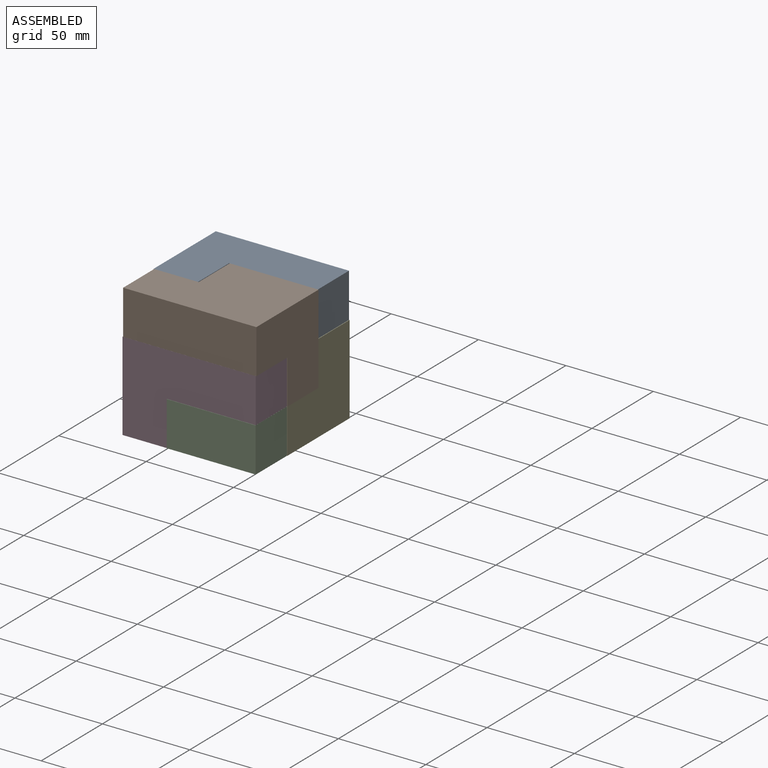
[diagram: assembled view]
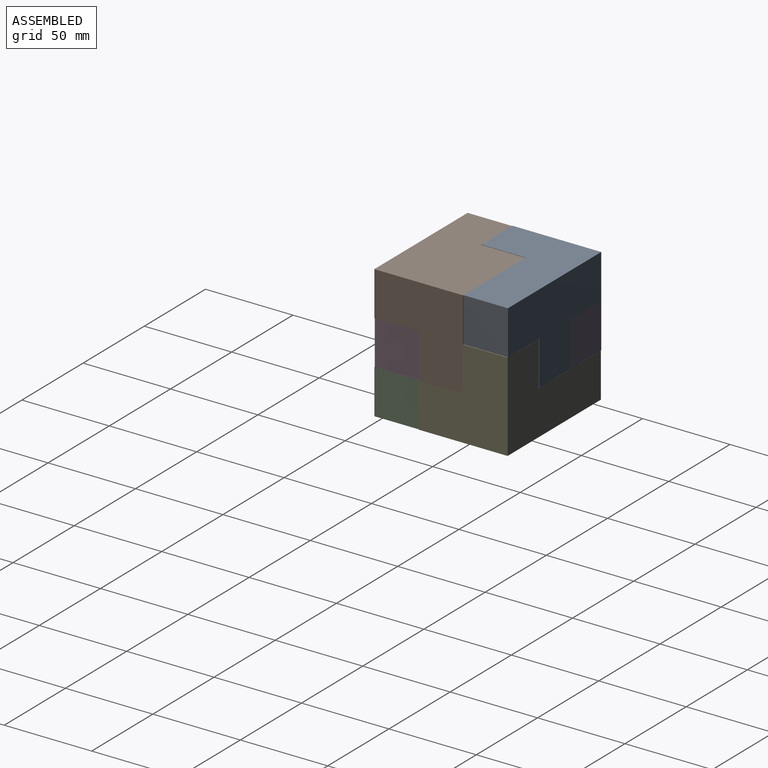
[diagram: assembled view, second angle]
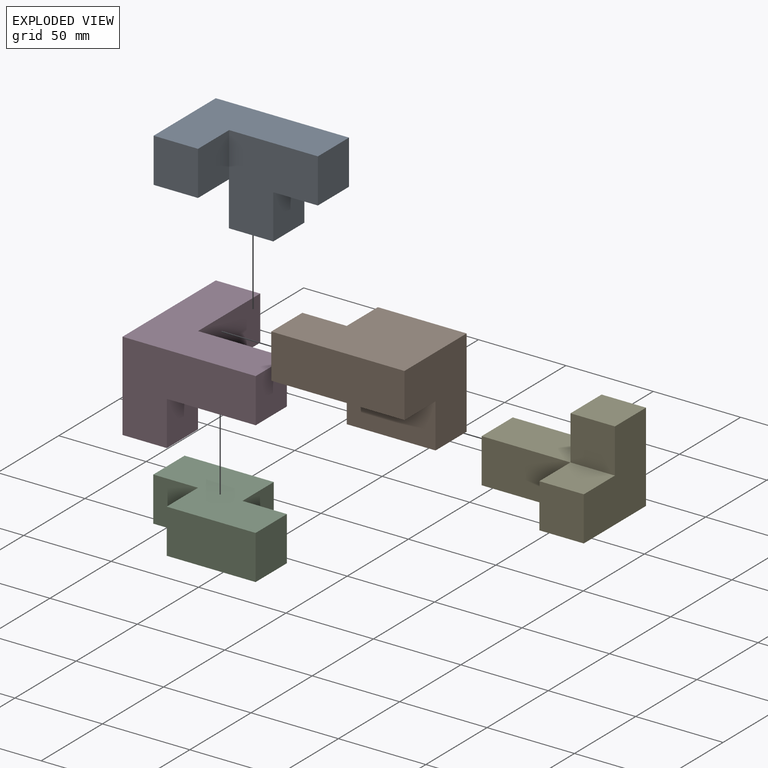
[diagram: exploded view]
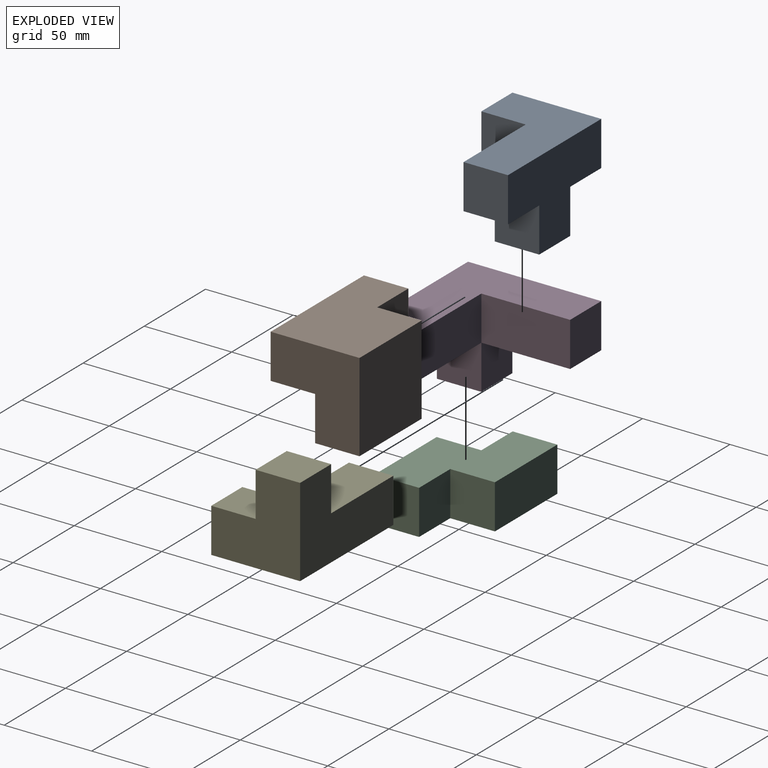
[diagram: exploded view, second angle]
ASSEMBLY  parts=5 mates=3
PART A: 12 faces, bbox 76.2x50.8x50.8 mm
  f0: plane 50.8x25.4mm, normal (0,0,-1), area 1286.9mm2, adj f2,f3,f5,f6,f7,f9
  f1: plane 25.53x25.4mm, normal (0,0,-1), area 648.6mm2, adj f3,f4,f5,f10
  f2: plane 25.4x25.4mm, normal (1,0,0), area 645.2mm2, adj f0,f3,f7,f8
  f3: plane 50.93x50.8mm, normal (0,-1,0), area 1935.5mm2, adj f0,f1,f2,f4,f8,f9,f10,f11
  f4: plane 25.4x25.4mm, normal (1,0,0), area 645.2mm2, adj f1,f3,f5,f8
  f5: plane 76.2x50.8mm, normal (0,1,0), area 2580.6mm2, adj f0,f1,f4,f6,f8,f9,f10,f11
  f6: plane 50.8x25.4mm, normal (-1,0,0), area 1290.3mm2, adj f0,f5,f7,f8
  f7: plane 25.4x25.4mm, normal (0,-1,0), area 645.2mm2, adj f0,f2,f6,f8
  f8: plane 76.2x50.8mm, normal (0,0,1), area 2580.6mm2, adj f2,f3,f4,f5,f6,f7
  f9: plane 25.4x25.4mm, normal (-1,0,0), area 645.2mm2, adj f0,f3,f5,f11
  f10: plane 25.4x25.4mm, normal (1,0,0), area 645.2mm2, adj f1,f3,f5,f11
  f11: plane 25.4x25.4mm, normal (0,0,-1), area 645.2mm2, adj f3,f5,f9,f10
PART B: 10 faces, bbox 76.2x50.8x50.8 mm
  f0: plane 76.2x25.4mm, normal (0,-1,0), area 1935.5mm2, adj f1,f5,f6,f7
  f1: plane 50.8x50.8mm, normal (1,0,0), area 1935.5mm2, adj f0,f2,f6,f7,f8,f9
  f2: plane 50.8x50.8mm, normal (0,1,0), area 2580.6mm2, adj f1,f3,f6,f9
  f3: plane 50.8x25.4mm, normal (-1,0,0), area 1290.3mm2, adj f2,f4,f6,f8,f9
  f4: plane 25.4x25.4mm, normal (0,1,0), area 645.2mm2, adj f3,f5,f6,f7
  f5: plane 25.4x25.4mm, normal (-1,0,0), area 645.2mm2, adj f0,f4,f6,f7
  f6: plane 76.2x50.8mm, normal (0,0,1), area 3225.8mm2, adj f0,f1,f2,f3,f4,f5
  f7: plane 76.2x25.4mm, normal (0,0,-1), area 1935.5mm2, adj f0,f1,f4,f5,f8
  f8: plane 50.8x25.4mm, normal (0,-1,0), area 1290.3mm2, adj f1,f3,f7,f9
  f9: plane 50.8x25.4mm, normal (0,0,-1), area 1290.3mm2, adj f1,f2,f3,f8
PART C: 10 faces, bbox 76.4x51.1x25.4 mm
  f0: plane 25.43x25.4mm, normal (0,1,0), area 645.8mm2, adj f1,f7,f8,f9
  f1: plane 25.57x25.4mm, normal (1,0,0), area 649.4mm2, adj f0,f2,f8,f9
  f2: plane 50.99x25.4mm, normal (0,1,0), area 1295.2mm2, adj f1,f3,f8,f9
  f3: plane 25.57x25.4mm, normal (-1,0,0), area 649.4mm2, adj f2,f4,f8,f9
  f4: plane 25.57x25.4mm, normal (0,-1,0), area 649.4mm2, adj f3,f5,f8,f9
  f5: plane 25.57x25.4mm, normal (-1,0,0), area 649.4mm2, adj f4,f6,f8,f9
  f6: plane 50.85x25.4mm, normal (0,-1,0), area 1291.6mm2, adj f5,f7,f8,f9
  f7: plane 25.57x25.4mm, normal (1,0,0), area 649.4mm2, adj f0,f6,f8,f9
  f8: plane 76.42x51.14mm, normal (0,0,1), area 2604mm2, adj f0,f1,f2,f3,f4,f5,f6,f7
  f9: plane 76.42x51.14mm, normal (0,0,-1), area 2604mm2, adj f0,f1,f2,f3,f4,f5,f6,f7
PART D: 12 faces, bbox 76.2x76.2x50.8 mm
  f0: plane 50.8x25.4mm, normal (0,0,1), area 1290.3mm2, adj f2,f3,f4,f9
  f1: plane 76.2x50.8mm, normal (-1,0,0), area 2580.6mm2, adj f2,f6,f7,f8,f10,f11
  f2: plane 76.2x50.8mm, normal (0,-1,0), area 2580.6mm2, adj f0,f1,f3,f8,f9,f11
  f3: plane 25.4x25.4mm, normal (1,0,0), area 645.2mm2, adj f0,f2,f4,f8
  f4: plane 50.8x25.4mm, normal (0,1,0), area 1290.3mm2, adj f0,f3,f5,f8
  f5: plane 50.8x25.4mm, normal (1,0,0), area 1290.3mm2, adj f4,f6,f7,f8
  f6: plane 25.4x25.4mm, normal (0,1,0), area 645.2mm2, adj f1,f5,f7,f8
  f7: plane 50.8x25.4mm, normal (0,0,1), area 1290.3mm2, adj f1,f5,f6,f10
  f8: plane 76.2x76.2mm, normal (0,0,-1), area 3225.8mm2, adj f1,f2,f3,f4,f5,f6
  f9: plane 25.4x25.4mm, normal (1,0,0), area 645.2mm2, adj f0,f2,f10,f11
  f10: plane 25.4x25.4mm, normal (0,1,0), area 645.2mm2, adj f1,f7,f9,f11
  f11: plane 25.4x25.4mm, normal (0,0,1), area 645.2mm2, adj f1,f2,f9,f10
PART E: 12 faces, bbox 76.2x50.8x50.8 mm
  f0: plane 25.4x25.4mm, normal (0,0,1), area 645.2mm2, adj f2,f3,f7,f9
  f1: plane 50.8x25.4mm, normal (0,0,1), area 1290.3mm2, adj f4,f5,f6,f10
  f2: plane 25.4x25.4mm, normal (0,-1,0), area 645.2mm2, adj f0,f3,f7,f8
  f3: plane 50.8x50.8mm, normal (1,0,0), area 1935.5mm2, adj f0,f2,f4,f8,f9,f11
  f4: plane 76.2x50.8mm, normal (0,1,0), area 2580.6mm2, adj f1,f3,f5,f8,f10,f11
  f5: plane 25.4x25.4mm, normal (-1,0,0), area 645.2mm2, adj f1,f4,f6,f8
  f6: plane 50.8x25.4mm, normal (0,-1,0), area 1290.3mm2, adj f1,f5,f7,f8
  f7: plane 25.4x25.4mm, normal (-1,0,0), area 645.2mm2, adj f0,f2,f6,f8
  f8: plane 76.2x50.8mm, normal (0,0,-1), area 2580.6mm2, adj f2,f3,f4,f5,f6,f7
  f9: plane 25.4x25.4mm, normal (0,-1,0), area 645.2mm2, adj f0,f3,f10,f11
  f10: plane 25.4x25.4mm, normal (-1,0,0), area 645.2mm2, adj f1,f4,f9,f11
  f11: plane 25.4x25.4mm, normal (0,0,1), area 645.2mm2, adj f3,f4,f9,f10
PLACE A t=(-24.54,17.42,48.2)mm
PLACE B t=(21.41,-33.35,48.2)mm
PLACE C t=(-4.31,-7.98,-2.6)mm
PLACE D rot(axis=(0.71,0.71,0),180deg) t=(-55.14,-33.38,48.2)mm
PLACE E t=(-3.99,-7.95,-2.6)mm
MATE fastened A.f0 <-> D.f8  axis (0,0,-1) through (-55.14,42.82,48.2)mm
MATE fastened B.f1 <-> E.f3  axis (1,0,0) through (21.41,17.45,22.8)mm
MATE fastened D.f11 <-> C.f9  axis (0,0,-1) through (-29.74,-7.98,-2.6)mm
